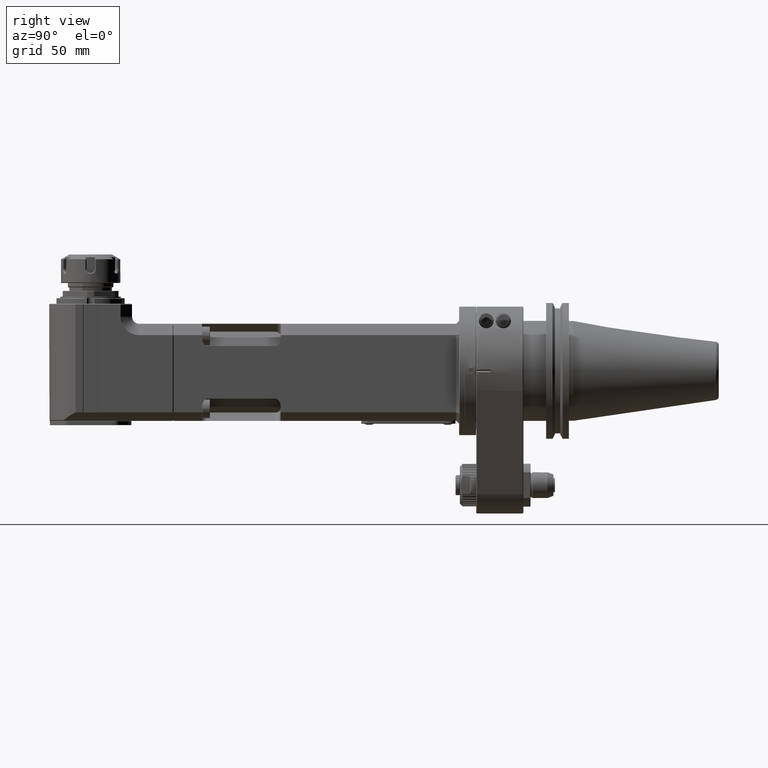
[diagram: clean part render]
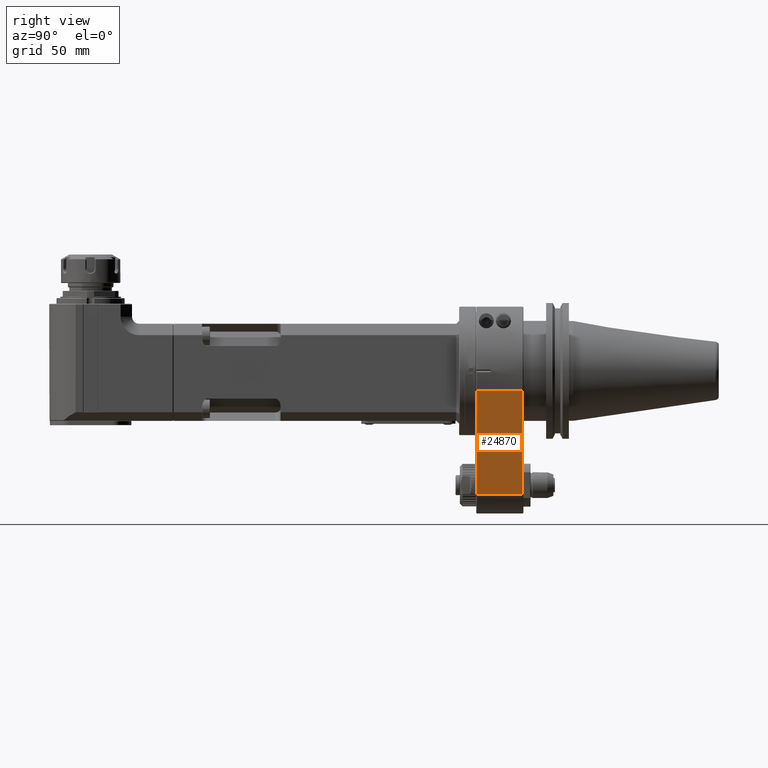
[diagram: same view with one face highlighted and labeled with its STEP entity id]
A machine part, right view. The second image highlights one B-rep face of the part: STEP entity #24870.
In plain terms, the highlighted planar face has unit normal (0.9499, 0, -0.3125).
Its self-contained STEP definition (entity closure, byte-faithful):
#2896=FACE_OUTER_BOUND('',#4422,.T.);
#4422=EDGE_LOOP('',(#17505,#17506,#17507,#17508));
#6005=LINE('',#36262,#8096);
#6243=LINE('',#37925,#8334);
#6244=LINE('',#37927,#8335);
#6245=LINE('',#37928,#8336);
#8096=VECTOR('',#29095,10.);
#8334=VECTOR('',#29993,31.99973305069);
#8335=VECTOR('',#29996,10.);
#8336=VECTOR('',#29997,31.99972219508);
#10273=VERTEX_POINT('',#36257);
#10274=VERTEX_POINT('',#36261);
#10292=VERTEX_POINT('',#36315);
#10554=VERTEX_POINT('',#37921);
#12772=EDGE_CURVE('',#10274,#10273,#6005,.T.);
#13222=EDGE_CURVE('',#10273,#10554,#6243,.T.);
#13223=EDGE_CURVE('',#10554,#10292,#6244,.T.);
#13224=EDGE_CURVE('',#10292,#10274,#6245,.T.);
#17505=ORIENTED_EDGE('',*,*,#13223,.T.);
#17506=ORIENTED_EDGE('',*,*,#13224,.T.);
#17507=ORIENTED_EDGE('',*,*,#12772,.T.);
#17508=ORIENTED_EDGE('',*,*,#13222,.T.);
#24023=PLANE('',#26700);
#24870=ADVANCED_FACE('',(#2896),#24023,.T.);
#26700=AXIS2_PLACEMENT_3D('',#37926,#29994,#29995);
#29095=DIRECTION('',(-0.31249999999999,1.40130751937532E-14,-0.94991775959817));
#29993=DIRECTION('',(0.,1.,0.));
#29994=DIRECTION('center_axis',(0.94991775959817,0.,-0.31249999999999));
#29995=DIRECTION('ref_axis',(-0.31249999999999,0.,-0.94991775959817));
#29996=DIRECTION('',(0.31249999999999,1.40130751937532E-14,0.94991775959817));
#29997=DIRECTION('',(4.996046983514E-14,-1.,-1.6264908513E-14));
#36257=CARTESIAN_POINT('',(18.9983553225688,0.500125750878564,-86.2499999836575));
#36261=CARTESIAN_POINT('',(42.7462992793599,0.500131179262622,-14.0625000850757));
#36262=CARTESIAN_POINT('',(36.8093131844315,0.500000000003365,-32.1093750000006));
#36315=CARTESIAN_POINT('',(42.7462992793588,32.4998688207349,-14.0625000850786));
#37921=CARTESIAN_POINT('',(18.9983552104546,32.4998745360779,-86.2499999437968));
#37925=CARTESIAN_POINT('',(18.99835520941,0.5001334746534,-86.24999994643));
#37926=CARTESIAN_POINT('Origin',(42.74629918192,0.,-14.0625));
#37927=CARTESIAN_POINT('',(36.8093131844314,32.4999999999966,-32.1093750000008));
#37928=CARTESIAN_POINT('',(42.74629916601,32.49986109754,-14.06250004779));